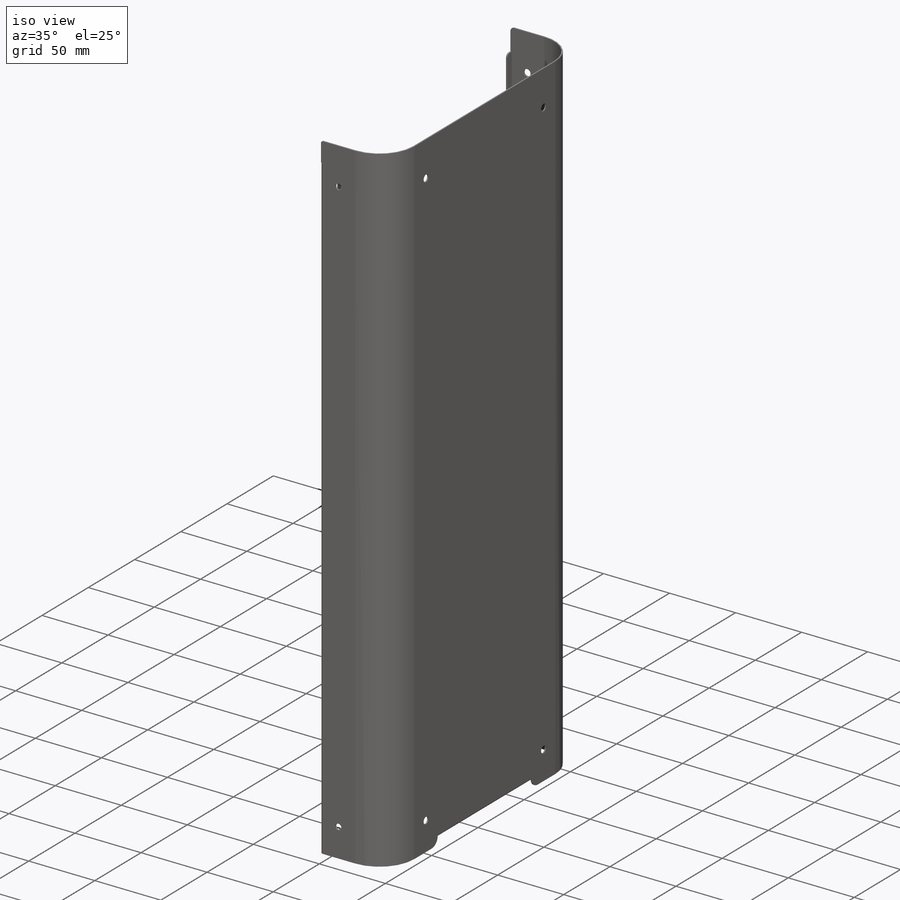
[diagram: iso view]
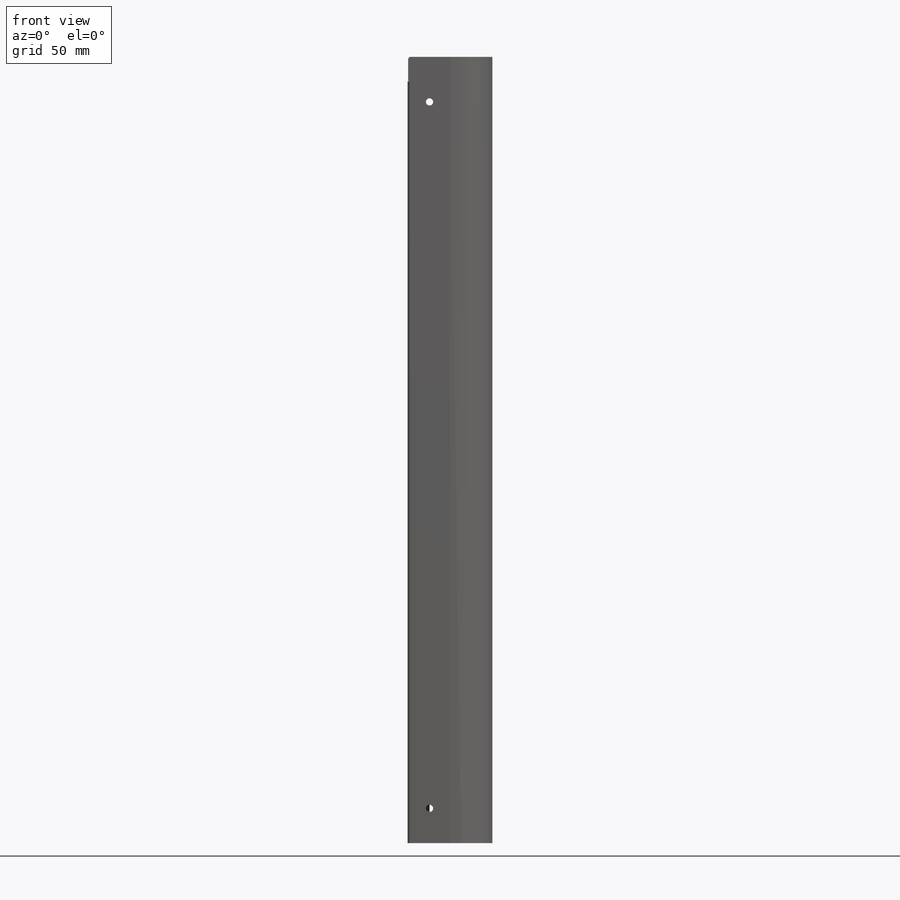
[diagram: front view]
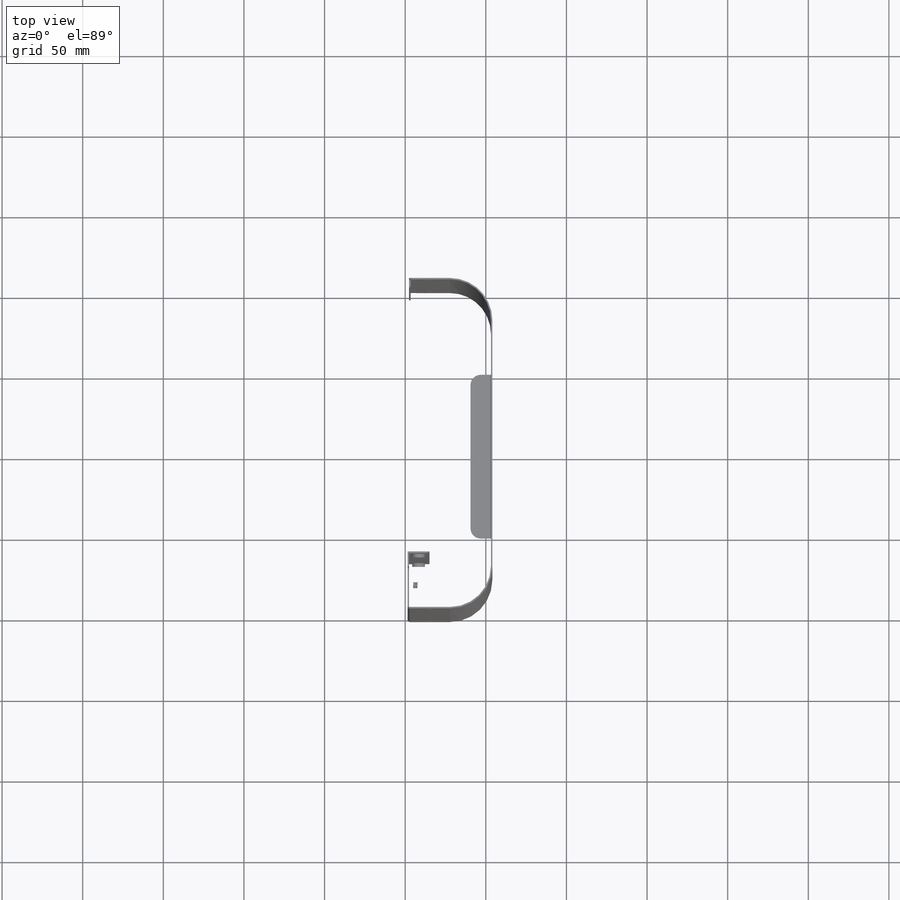
[diagram: top view]
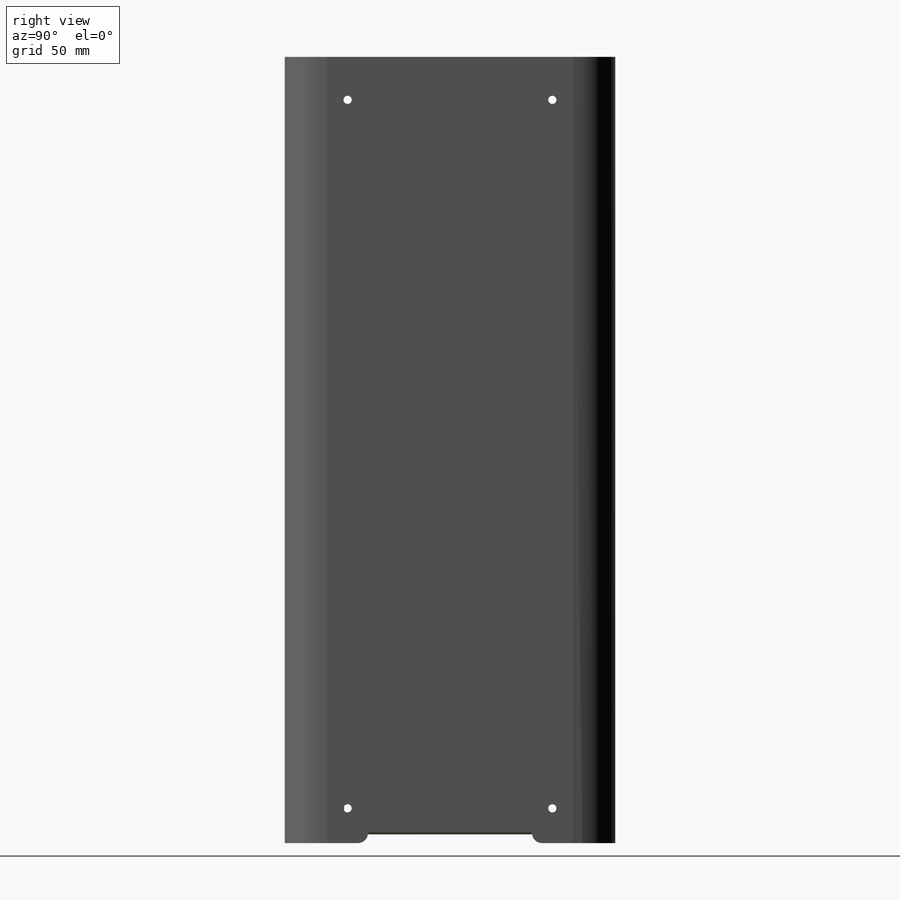
[diagram: right view]
SOLIDWORKS PART (.sldprt)
format: sldprt  version: not decoded by parser v0  size: 2,738,688 bytes
history: native  units: mm
features: sketch x28, cut_extrude x18, fillet x14, extrude x9, move_body x4, material x1, plane x1, chamfer x1 + 4 further entries (+32 scaffold rows collapsed; 20 parser-record rows omitted)
feature tree (132):
  scaffold x32  (default folders/planes/origin — collapsed)
  material  "Material <not specified>"
  fillet  "Fillet1"  Radius=6.35mm
  sketch  "Sketch5"  dims[D1=5.4102mm D2=31.75mm D3=38.1mm]
  cut_extrude  "Cut-Extrude5"  Depth=2.54mm
  fillet  "Fillet2"  Radius=6.35mm
  "96439A320"
  parser-record x20  (decoder bookkeeping rows leaked as tree rows — omitted from the tree; the rows remain in map.json)
  move_body  "Body-Move/Copy2"
  sketch  "Sketch6"  dims[D1=4.445mm]
  cut_extrude  "Cut-Extrude6"  Depth=5.08mm
  sketch  "Sketch7"  dims[D1=5.08mm]
  cut_extrude  "Cut-Extrude7"  Depth=5.08mm
  sketch  "Sketch9"  dims[c1.D1=0.254mm c1.D2=4.7625mm c1.D3=0.254mm c2.D1=1.524mm]
  sketch  "Sketch10"
  extrude  "Boss-Extrude2"  [1 undecoded]
  fillet  "Fillet6"  Radius=6.35mm
  "96439A3201"
  move_body  "Body-Move/Copy4"
  sketch  "Sketch12"
  cut_extrude  "Cut-Extrude9"  Depth=7.874mm
  sketch  "Sketch13"
  cut_extrude  "Cut-Extrude10"  [1 undecoded]
  sketch  "Sketch14"  dims[D2=0.254mm D1=0.0mm]
  extrude  "Boss-Extrude3"  Depth=1.27mm
  sketch  "Sketch15"
  extrude  "Boss-Extrude4"  [1 undecoded]
  sketch  "Sketch16"  dims[D1=6.35mm]
  cut_extrude  "Cut-Extrude11"  Depth=5.08mm
  sketch  "Sketch17"  dims[D1=25.4mm]
  cut_extrude  "Cut-Extrude12"  Depth=2.54mm
  fillet  "Fillet8"  Radius=6.35mm
  fillet  "Fillet9"  Radius=1.524mm
  fillet  "Fillet10"  Radius=2.54mm
  sketch  "Sketch18"  dims[D1=4.7625mm D2=16.51mm D3=10.16mm]
  extrude  "Boss-Extrude5"  Depth=1.016mm
  fillet  "Fillet11"  Radius=2.54mm
  fillet  "Fillet12"  Radius=2.54mm
  sketch  "Sketch19"  dims[D1=5.08mm]
  cut_extrude  "Cut-Extrude13"  Depth=2.54mm
  sketch  "Sketch20"  dims[D1=4.064mm D2=0.762mm D3=0.762mm]
  cut_extrude  "Cut-Extrude14"  Depth=6.35mm
  sketch  "Sketch21"  dims[D1=4.064mm D2=0.762mm D3=0.762mm]
  cut_extrude  "Cut-Extrude15"  Depth=6.35mm
  plane  "Plane1"  Offset=88.9mm
  sketch  "Sketch22"  dims[c1.D4=1.651mm c1.D1=1.651mm c1.D2=1.651mm c1.D3=1.651mm c2.D4=0.254mm]
  extrude  "Boss-Extrude6"  Depth=1.651mm
  sketch  "Sketch23"  dims[D1=19.05mm D2=57.15mm]
  extrude  "Boss-Extrude7"  Depth=1.651mm
  sketch  "Sketch24"
  cut_extrude  "Cut-Extrude16"  Depth=6.731mm
  sketch  "Sketch25"  dims[D1=4.7625mm]
  cut_extrude  "Cut-Extrude17"  Depth=6.731mm
  fillet  "Fillet13"  Radius=6.35mm
  fillet  "Fillet14"  Radius=2.54mm
  sketch  "Sketch26"
  cut_extrude  "Cut-Extrude18"  Depth=6.731mm
  fillet  "Fillet15"  Radius=1.524mm
  sketch  "Sketch27"  dims[D2=1.6mm D1=19.0mm]
  cut_extrude  "Cut-Extrude19"  Depth=6.731mm
  sketch  "Sketch29"  dims[D1=1.524mm]
  cut_extrude  "Cut-Extrude20"  Depth=5.08mm
  sketch  "Sketch30"  dims[D1=12.7mm D2=15.875mm]
  extrude  "Boss-Extrude8"  Depth=1.651mm
  sketch  "Sketch31"  dims[D1=1.524mm D2=7.62mm]
  cut_extrude  "Cut-Extrude21"  Depth=6.731mm
  sketch  "Sketch32"  dims[D1=57.15mm]
  extrude  "Boss-Extrude9"  Depth=1.651mm
  sketch  "Sketch33"  dims[D1=15.875mm D2=25.4mm]
  extrude  "Boss-Extrude10"  Depth=1.651mm
  chamfer  "Chamfer1"  Distance=12.7mm Angle=45deg
  "96439A3203"
  move_body  "Body-Move/Copy10"
  "96439A3204"
  move_body  "Body-Move/Copy12"
  sketch  "Sketch35"  dims[D1=6.35mm]
  cut_extrude  "Cut-Extrude22"  Depth=16.35mm
  fillet  "Fillet7"  Radius=6.35mm
  fillet  "Fillet16"  Radius=3mm
  sketch  "Sketch36"
  cut_extrude  "Cut-Extrude23"  Depth=5.08mm
  fillet  "Fillet17"  Radius=0.762mm
decode coverage: 60 of 74 modeling features carry decoded parameters; 4 rows unclassified (native names shown)
note: 3 parameter values undecoded
summary: no parameter record found for 3 features
note: suppression state not decoded; provenance and decode notes live in map.json
